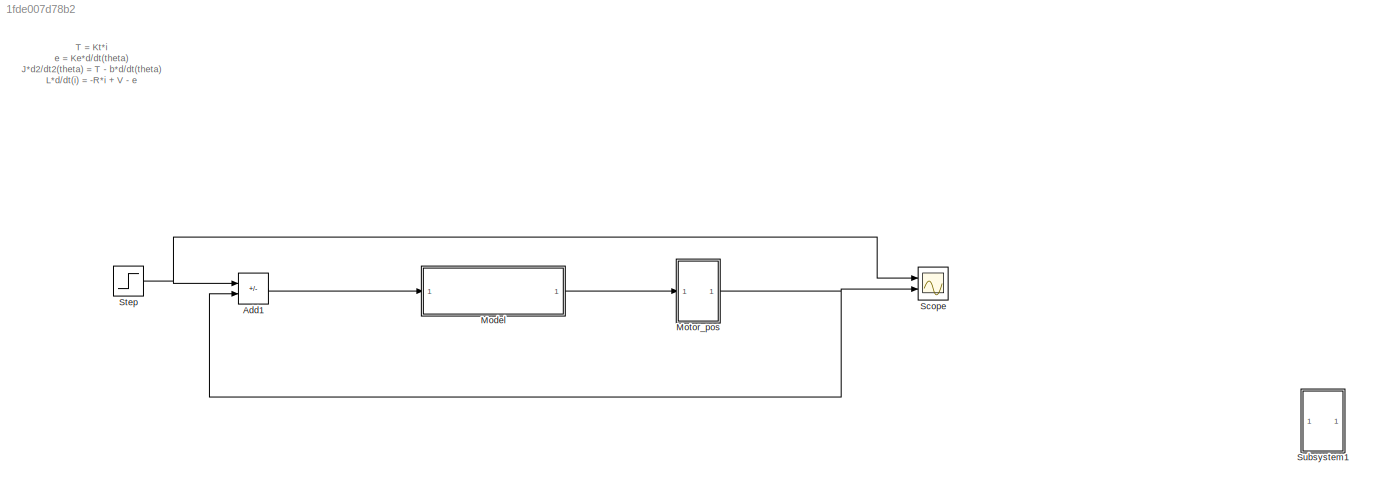
MODEL slx_1fde007d78b2
KIND model
CONFIG AbsTol = auto
CONFIG EnableMultiTasking = off
CONFIG FixedStep = auto
CONFIG MaxStep = auto
CONFIG MinStep = auto
CONFIG RelTol = 1e-3
CONFIG SampleTimeConstraint = Unconstrained
CONFIG SolverName = VariableStepAuto
CONFIG StartTime = 0.0
CONFIG StopTime = 5
BLOCK [Sum] Add1
  IconShape = rectangular
  Inputs = +-
  Ports = [2, 1]
BLOCK [ModelReference] Model
  ModelNameDialog = Subsystem1.slx
  ModelReferenceVersion = 1.5
  Ports = [1, 1]
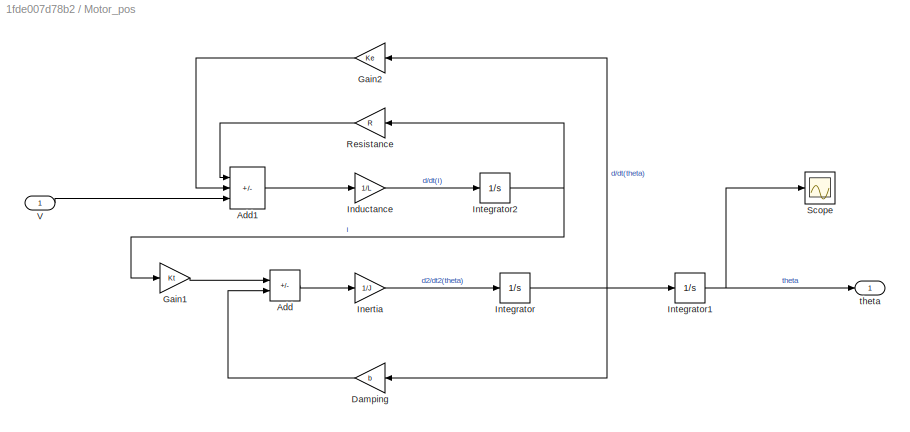
BLOCK [SubSystem] Motor_pos
  Ports = [1, 1]
  RequestExecContextInheritance = off
BLOCK [Sum] Motor_pos/Add 
  IconShape = rectangular
  Inputs = +-
  Ports = [2, 1]
BLOCK [Sum] Motor_pos/Add1 
  IconShape = rectangular
  Inputs = --+
  Ports = [3, 1]
BLOCK [Gain] Motor_pos/Damping
  Gain = b
  NameLocation = top
BLOCK [Gain] Motor_pos/Gain1
  Gain = Kt
BLOCK [Gain] Motor_pos/Gain2
  Gain = Ke
  NameLocation = top
BLOCK [Gain] Motor_pos/Inductance
  Gain = 1/L
BLOCK [Gain] Motor_pos/Inertia
  Gain = 1/J
BLOCK [Integrator] Motor_pos/Integrator 
  Ports = [1, 1]
BLOCK [Integrator] Motor_pos/Integrator1 
  Ports = [1, 1]
BLOCK [Integrator] Motor_pos/Integrator2 
  Ports = [1, 1]
BLOCK [Gain] Motor_pos/Resistance
  Gain = R
  NameLocation = top
BLOCK [Scope] Motor_pos/Scope
  Floating = off
  NumInputPorts = 1
  Ports = [1]
  ScopeSpecificationString = Simulink.scopes.TimeScopeBlockCfg('CurrentConfiguration', extmgr.ConfigurationSet(extmgr.Configuration('Core','General UI',true),extmgr.Configuration('Core','Source UI',true),extmgr.Configuration('Sources','WiredSimulink',true),extmgr.Configuration('Visuals','Time Domain',true,'SerializedDisplays',{struct('MinYLimReal','-12988014.53621','MaxYLimReal','114292146.49011','YLabelReal','','MinYLimMag',...<+1412ch>
BLOCK [Inport] Motor_pos/V
BLOCK [Outport] Motor_pos/theta
BLOCK [Scope] Scope
  Floating = off
  NumInputPorts = 2
  Ports = [2]
  ScopeSpecificationString = Simulink.scopes.TimeScopeBlockCfg('CurrentConfiguration', extmgr.ConfigurationSet(extmgr.Configuration('Core','General UI',true),extmgr.Configuration('Core','Source UI',true),extmgr.Configuration('Sources','WiredSimulink',true,'DataLoggingVariableName','ScopeData1'),extmgr.Configuration('Visuals','Time Domain',true,'SerializedDisplays',{struct('MinYLimReal','0.78551','MaxYLimReal','1.1852','YLabel...<+1440ch>
BLOCK [Step] Step
  SampleTime = 0
BLOCK [ModelReference] Subsystem1
  Commented = on
  ModelNameDialog = Subsystem1
  ModelReferenceVersion = 1.4
  Ports = [1, 1]
ANNOTATION (root): T = Kt*i e = Ke*d/dt(theta) J*d2/dt2(theta) = T - b*d/dt(theta) L*d/dt(i) = -R*i + V - e
LINE Add1:1 -> Model:1
LINE Model:1 -> Motor_pos:1
LINE Motor_pos/Add :1 -> Motor_pos/Inertia:1
LINE Motor_pos/Add1 :1 -> Motor_pos/Inductance:1
LINE Motor_pos/Damping:1 -> Motor_pos/Add :2
LINE Motor_pos/Gain1:1 -> Motor_pos/Add :1
LINE Motor_pos/Gain2:1 -> Motor_pos/Add1 :2
LINE Motor_pos/Inductance:1 -> Motor_pos/Integrator2 :1
LINE Motor_pos/Inertia:1 -> Motor_pos/Integrator :1
NET Motor_pos/Integrator :1 -> Motor_pos/Damping:1, Motor_pos/Gain2:1, Motor_pos/Integrator1 :1
NET Motor_pos/Integrator1 :1 -> Motor_pos/Scope:1, Motor_pos/theta:1
NET Motor_pos/Integrator2 :1 -> Motor_pos/Gain1:1, Motor_pos/Resistance:1
LINE Motor_pos/Resistance:1 -> Motor_pos/Add1 :1
LINE Motor_pos/V:1 -> Motor_pos/Add1 :3
NET Motor_pos:1 -> Add1:2, Scope:2
NET Step:1 -> Add1:1, Scope:1
note: NET lines group one-source signal fan-out (src -> all destinations, sorted); 1:1 wires keep LINE
